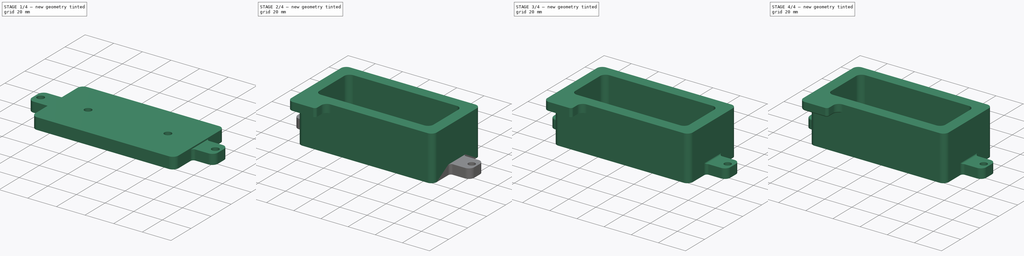
[diagram: build sequence overview — one tinted view per stage of 4, left to right]
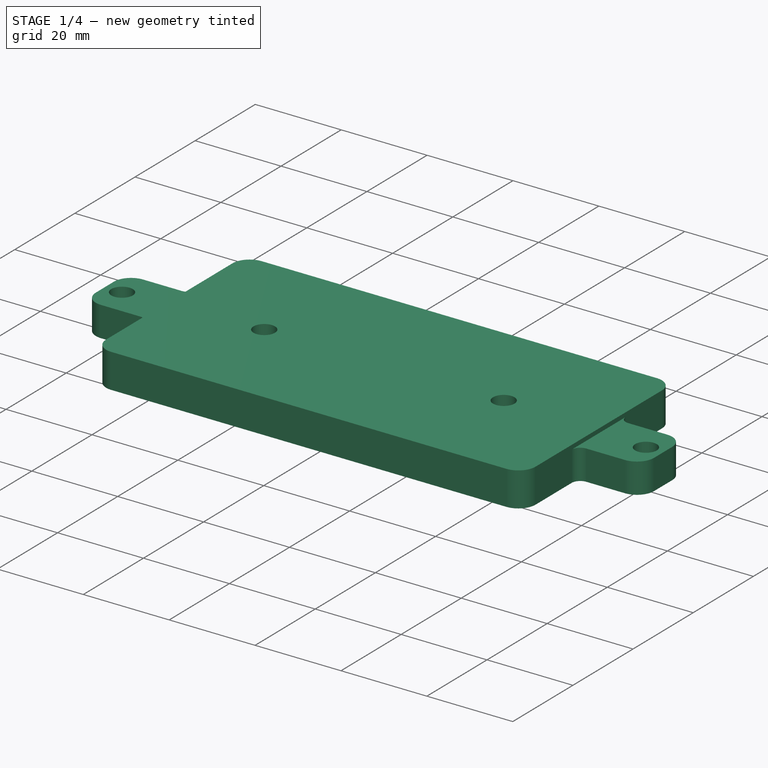
[diagram: stage 1 of 4 — iso view after this stage's code; geometry added in this stage tinted green]
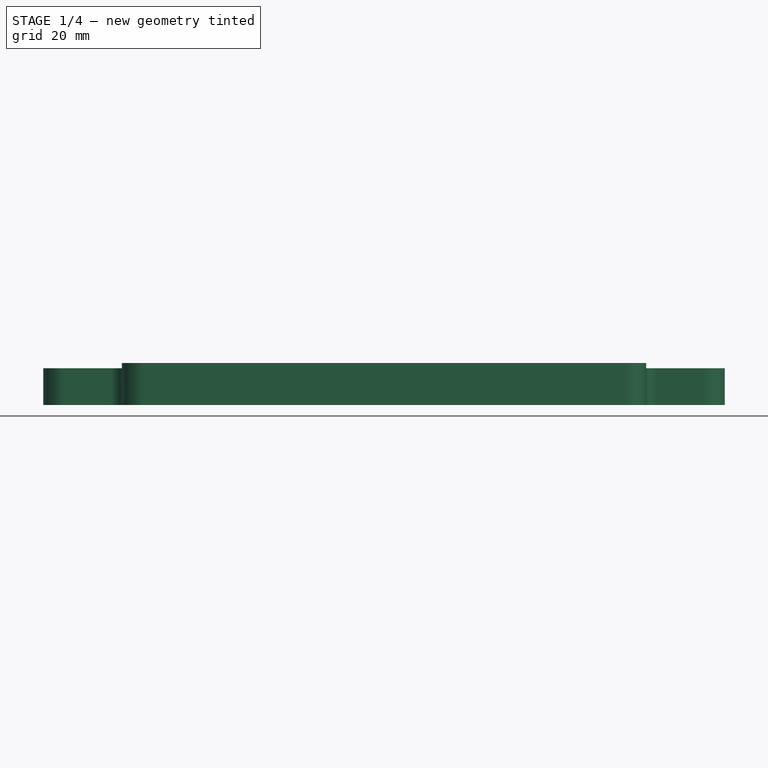
[diagram: stage 1 of 4 — front view after this stage's code; geometry added in this stage tinted green]
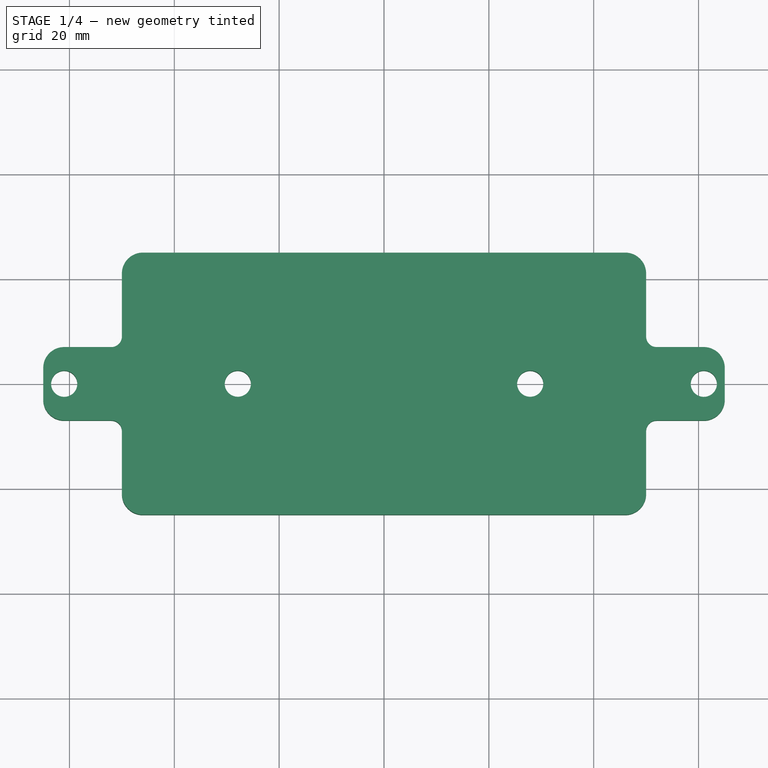
[diagram: stage 1 of 4 — top view after this stage's code; geometry added in this stage tinted green]
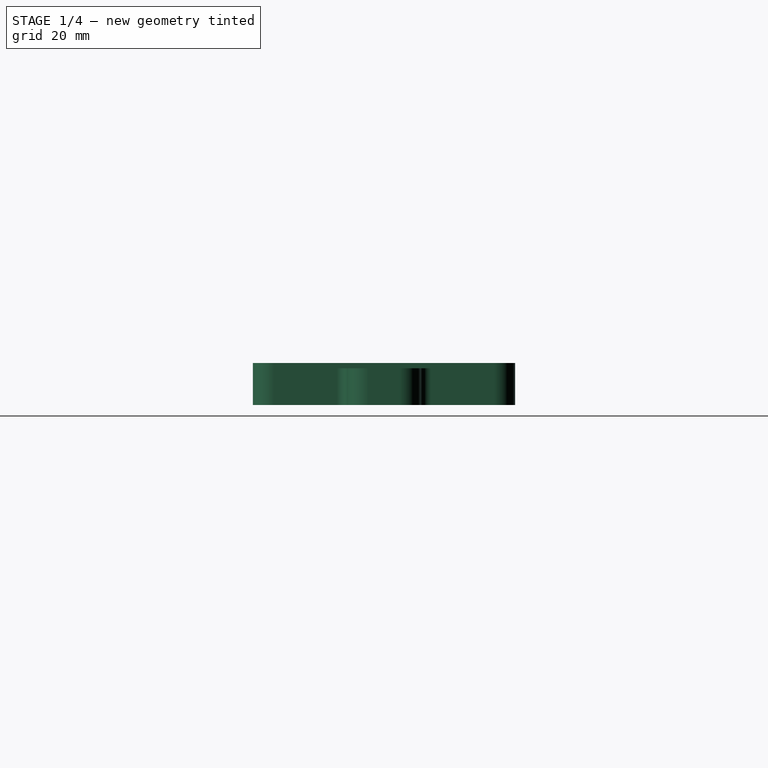
[diagram: stage 1 of 4 — right view after this stage's code; geometry added in this stage tinted green]
FCSTD DOCUMENT  (FreeCAD 1.0R39109 (Git))
Label: 7.3
License: All rights reserved
LicenseURL: https://en.wikipedia.org/wiki/All_rights_reserved
objects: Sketcher::SketchObject×5, PartDesign::Fillet×5, PartDesign::Pad×4, PartDesign::Body×1
note: 38 computed .brp shape members not serialized (recipe doc carries the construction recipe); baked Part::Feature solids carry a one-line shape summary decoded from their .brp

FEATURE [Sketcher::SketchObject] Sketch
  ArcFitTolerance = 1e-06
  AttachmentSupport = -> [XY_Plane]
  FullyConstrained = true
  MakeInternals = false
  MapMode = 5
  sketch-geometry (14):
    g0: LineSegment StartX=-50 StartY=21 StartZ=0 EndX=-50 EndY=-21 EndZ=0
    g1: LineSegment StartX=-46 StartY=-25 StartZ=0 EndX=46 EndY=-25 EndZ=0
    g2: LineSegment StartX=50 StartY=-21 StartZ=0 EndX=50 EndY=21 EndZ=0
    g3: LineSegment StartX=46 StartY=25 StartZ=0 EndX=-46 EndY=25 EndZ=0
    g4: Circle CenterX=-27.8843 CenterY=0 CenterZ=0 NormalX=0 NormalY=0 NormalZ=1 AngleXU=0 Radius=2.5
    g5: Circle CenterX=27.8843 CenterY=0 CenterZ=0 NormalX=0 NormalY=0 NormalZ=1 AngleXU=0 Radius=2.5
    g6: ArcOfCircle CenterX=-46 CenterY=-21 CenterZ=0 NormalX=0 NormalY=0 NormalZ=1 AngleXU=0 Radius=4 StartAngle=3.14159 EndAngle=4.71239
    g7: GeomPoint [constr] X=-50 Y=-25 Z=0
    g8: ArcOfCircle CenterX=-46 CenterY=21 CenterZ=0 NormalX=0 NormalY=0 NormalZ=1 AngleXU=0 Radius=4 StartAngle=1.5708 EndAngle=3.14159
    g9: GeomPoint [constr] X=-50 Y=25 Z=0
    g10: ArcOfCircle CenterX=46 CenterY=21 CenterZ=0 NormalX=0 NormalY=0 NormalZ=1 AngleXU=0 Radius=4 StartAngle=0 EndAngle=1.5708
    g11: GeomPoint [constr] X=50 Y=25 Z=0
    g12: ArcOfCircle CenterX=46 CenterY=-21 CenterZ=0 NormalX=0 NormalY=0 NormalZ=1 AngleXU=0 Radius=4 StartAngle=4.71239 EndAngle=6.28319
    g13: GeomPoint [constr] X=50 Y=-25 Z=0
  constraints (32):
    c: Vertical(g0)
    c: Vertical(g2)
    c: Horizontal(g1)
    c: Horizontal(g3)
    c: Symmetric(g9,g13,g-1)
    c: DistanceX(g9,g11) = 100
    c: DistanceY(g7,g9) = 50
    c: Diameter(g4) = 5
    c: Equal(g4,g5)
    c: PointOnObject(g4,g-1)
    c: Symmetric(g4,g5,g-1)
    c: PointOnObject(g7,g1)
    c: PointOnObject(g7,g0)
    c: Tangent(g1,g6) = -1.5708
    c: Tangent(g0,g6) = -1.5708
    c: PointOnObject(g9,g3)
    c: PointOnObject(g9,g0)
    c: Tangent(g3,g8) = -1.5708
    c: Tangent(g0,g8) = -1.5708
    c: PointOnObject(g11,g3)
    c: PointOnObject(g11,g2)
    c: Tangent(g3,g10) = -1.5708
    c: Tangent(g2,g10) = -1.5708
    c: PointOnObject(g13,g2)
    c: PointOnObject(g13,g1)
    c: Tangent(g2,g12) = -1.5708
    c: Tangent(g1,g12) = -1.5708
    c: Radius(g6) = 4
    c: Radius(g8) = 4
    c: Radius(g10) = 4
    c: Radius(g12) = 4
    c: Block(g4)
FEATURE [PartDesign::Pad] Pad
  Direction = (0,0,1)
  Length = 8
  Length2 = 10
  Profile = -> Sketch
  ReferenceAxis = -> Sketch [N_Axis]
  Refine = true
  Suppressed = false
  Type = 0
FEATURE [Sketcher::SketchObject] Sketch001
  ArcFitTolerance = 1e-06
  AttachmentSupport = -> [Pad]
  ExternalGeometry = -> [Pad]
  FullyConstrained = true
  MakeInternals = false
  MapMode = 5
  Placement = pos=(0,0,0) rot=(1,0,0;3.14159rad)
  sketch-geometry (30):
    g0: LineSegment StartX=-50 StartY=21 StartZ=0 EndX=-50 EndY=-21 EndZ=0
    g1: LineSegment StartX=-50 StartY=-21 StartZ=0 EndX=-50 EndY=-9 EndZ=0
    g2: LineSegment StartX=-52 StartY=-7 StartZ=0 EndX=-61 EndY=-7 EndZ=0
    g3: LineSegment StartX=-65 StartY=-3 StartZ=0 EndX=-65 EndY=3 EndZ=0
    g4: LineSegment StartX=-61 StartY=7 StartZ=0 EndX=-52 EndY=7 EndZ=0
    g5: LineSegment StartX=-50 StartY=9 StartZ=0 EndX=-50 EndY=21 EndZ=0
    g6: Circle CenterX=-61 CenterY=0 CenterZ=0 NormalX=0 NormalY=0 NormalZ=1 AngleXU=0 Radius=2.5
    g7: ArcOfCircle CenterX=-61 CenterY=3 CenterZ=0 NormalX=0 NormalY=0 NormalZ=1 AngleXU=0 Radius=4 StartAngle=1.5708 EndAngle=3.14159
    g8: GeomPoint [constr] X=-65 Y=7 Z=0
    g9: ArcOfCircle CenterX=-61 CenterY=-3 CenterZ=0 NormalX=0 NormalY=0 NormalZ=1 AngleXU=0 Radius=4 StartAngle=3.14159 EndAngle=4.71239
    g10: GeomPoint [constr] X=-65 Y=-7 Z=0
    g11: ArcOfCircle CenterX=-52 CenterY=9 CenterZ=0 NormalX=0 NormalY=0 NormalZ=1 AngleXU=0 Radius=2 StartAngle=4.71239 EndAngle=6.28319
    g12: GeomPoint [constr] X=-50 Y=7 Z=0
    g13: ArcOfCircle CenterX=-52 CenterY=-9 CenterZ=0 NormalX=0 NormalY=0 NormalZ=1 AngleXU=0 Radius=2 StartAngle=6e-16 EndAngle=1.5708
    g14: GeomPoint [constr] X=-50 Y=-7 Z=0
    g15: LineSegment StartX=50 StartY=21 StartZ=0 EndX=50 EndY=-21 EndZ=0
    g16: LineSegment StartX=50 StartY=-21 StartZ=0 EndX=50 EndY=-9 EndZ=0
    g17: LineSegment StartX=52 StartY=-7 StartZ=0 EndX=61 EndY=-7 EndZ=0
    g18: LineSegment StartX=65 StartY=-3 StartZ=0 EndX=65 EndY=3 EndZ=0
    g19: LineSegment StartX=61 StartY=7 StartZ=0 EndX=52 EndY=7 EndZ=0
    g20: LineSegment StartX=50 StartY=9 StartZ=0 EndX=50 EndY=21 EndZ=0
    g21: Circle CenterX=61 CenterY=0 CenterZ=0 NormalX=0 NormalY=0 NormalZ=1 AngleXU=0 Radius=2.5
    g22: ArcOfCircle CenterX=61 CenterY=3 CenterZ=0 NormalX=0 NormalY=0 NormalZ=1 AngleXU=0 Radius=4 StartAngle=1e-16 EndAngle=1.5708
    g23: GeomPoint [constr] X=65 Y=7 Z=0
    g24: ArcOfCircle CenterX=61 CenterY=-3 CenterZ=0 NormalX=0 NormalY=0 NormalZ=1 AngleXU=0 Radius=4 StartAngle=4.71239 EndAngle=6.28319
    g25: GeomPoint [constr] X=65 Y=-7 Z=0
    g26: ArcOfCircle CenterX=52 CenterY=9 CenterZ=0 NormalX=0 NormalY=0 NormalZ=1 AngleXU=0 Radius=2 StartAngle=3.14159 EndAngle=4.71239
    g27: GeomPoint [constr] X=50 Y=7 Z=0
    g28: ArcOfCircle CenterX=52 CenterY=-9 CenterZ=0 NormalX=0 NormalY=0 NormalZ=1 AngleXU=0 Radius=2 StartAngle=1.5708 EndAngle=3.14159
    g29: GeomPoint [constr] X=50 Y=-7 Z=0
  constraints (64):
    c: Coincident(g-3,g0)
    c: Coincident(g0,g-3)
    c: Coincident(g0,g1)
    c: Horizontal(g2)
    c: Coincident(g5,g0)
    c: Vertical(g12,g14)
    c: Symmetric(g10,g8,g-1)
    c: Parallel(g2,g4)
    c: DistanceY(g10,g8) = 14
    c: DistanceX(g12,g-1) = 50
    c: DistanceX(g10,g-1) = 65
    c: Diameter(g6) = 5
    c: PointOnObject(g6,g-1)
    c: PointOnObject(g8,g4)
    c: PointOnObject(g8,g3)
    c: Tangent(g4,g7) = 1.5708
    c: Tangent(g3,g7) = 1.5708
    c: PointOnObject(g10,g3)
    c: PointOnObject(g10,g2)
    c: Tangent(g3,g9) = 1.5708
    c: Tangent(g2,g9) = 1.5708
    c: PointOnObject(g12,g4)
    c: PointOnObject(g12,g5)
    c: Tangent(g4,g11) = -1.5708
    c: Tangent(g5,g11) = -1.5708
    c: PointOnObject(g14,g2)
    c: PointOnObject(g14,g1)
    c: Tangent(g2,g13) = -1.5708
    c: Tangent(g1,g13) = -1.5708
    c: Radius(g13) = 2
    c: Radius(g11) = 2
    c: Radius(g7) = 4
    c: Radius(g9) = 4
    c: Vertical(g6,g9)
    c: Coincident(g15,g16)
    c: Horizontal(g17)
    c: Coincident(g20,g15)
    c: Parallel(g17,g19)
    c: Diameter(g21) = 5
    c: PointOnObject(g23,g19)
    c: PointOnObject(g23,g18)
    c: Tangent(g19,g22) = -1.5708
    c: Tangent(g18,g22) = -1.5708
    c: PointOnObject(g25,g18)
    c: PointOnObject(g25,g17)
    c: Tangent(g18,g24) = -1.5708
    c: Tangent(g17,g24) = -1.5708
    c: PointOnObject(g27,g19)
    c: PointOnObject(g27,g20)
    c: Tangent(g19,g26) = 1.5708
    c: Tangent(g20,g26) = 1.5708
    c: PointOnObject(g29,g17)
    c: PointOnObject(g29,g16)
    c: Tangent(g17,g28) = 1.5708
    c: Tangent(g16,g28) = 1.5708
    c: Radius(g28) = 2
    c: Radius(g26) = 2
    c: Radius(g22) = 4
    c: Radius(g24) = 4
    c: Block(g15)
    c: Block(g18)
    c: Block(g21)
    c: Block(g19)
    c: Block(g17)
FEATURE [PartDesign::Pad] Pad001
  BaseFeature = -> Pad
  Direction = (0,0,-1)
  Length = 7
  Length2 = 10
  Profile = -> Sketch001
  ReferenceAxis = -> Sketch001 [N_Axis]
  Refine = true
  Reversed = true
  Suppressed = false
  Type = 0
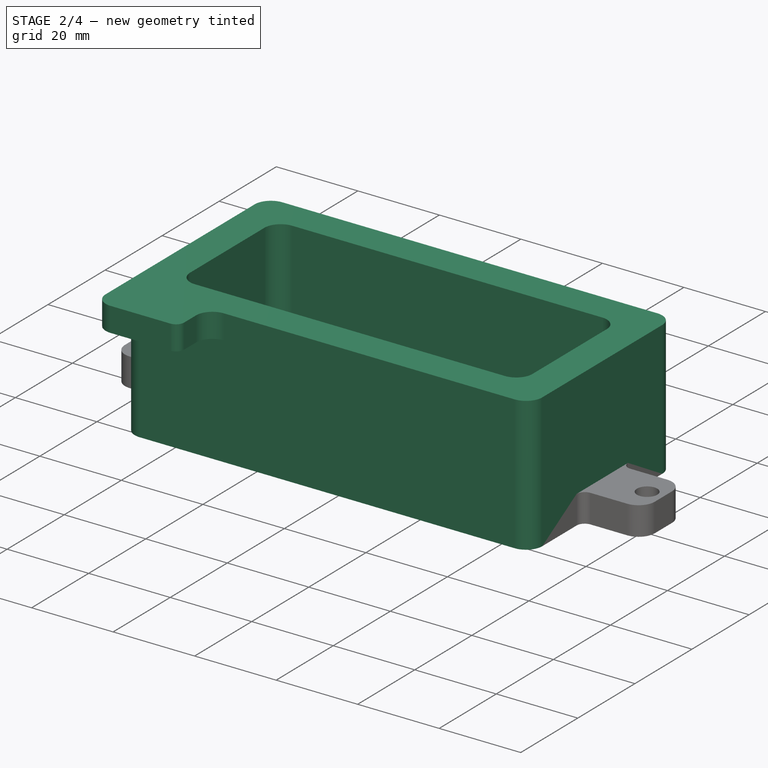
[diagram: stage 2 of 4 — iso view after this stage's code; geometry added in this stage tinted green]
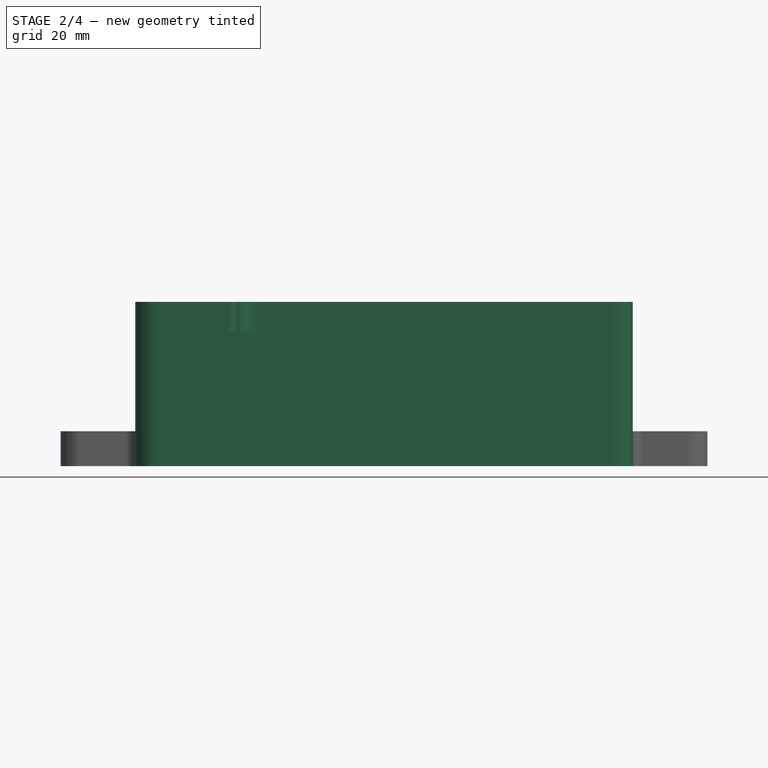
[diagram: stage 2 of 4 — front view after this stage's code; geometry added in this stage tinted green]
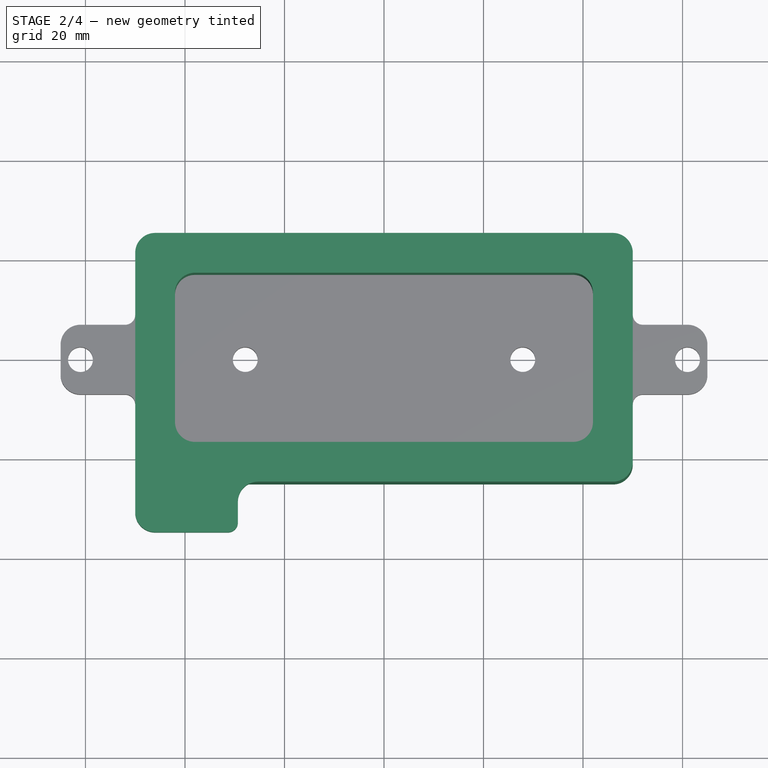
[diagram: stage 2 of 4 — top view after this stage's code; geometry added in this stage tinted green]
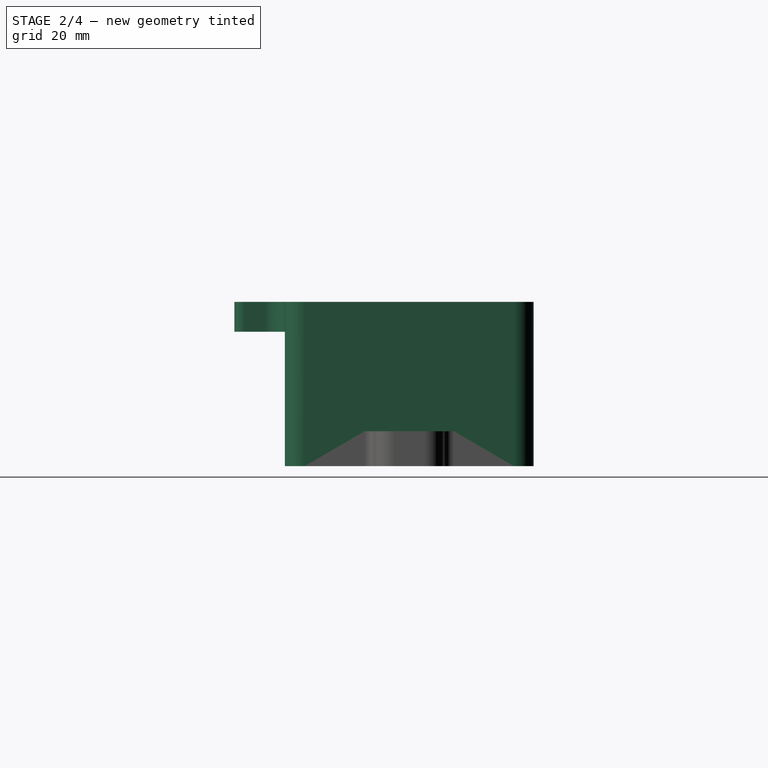
[diagram: stage 2 of 4 — right view after this stage's code; geometry added in this stage tinted green]
FEATURE [Sketcher::SketchObject] Sketch002
  ArcFitTolerance = 1e-06
  AttachmentSupport = -> [Pad001]
  FullyConstrained = true
  MakeInternals = false
  MapMode = 5
  Placement = pos=(0,0,8) rot=(0,0,1;0rad)
FEATURE [Sketcher::SketchObject] Sketch003
  ArcFitTolerance = 1e-06
  AttachmentSupport = -> [Pad001]
  ExternalGeometry = -> [Pad001]
  FullyConstrained = true
  MakeInternals = false
  MapMode = 5
  Placement = pos=(0,0,8) rot=(0,0,1;0rad)
  sketch-geometry (24):
    g0: LineSegment StartX=-46 StartY=25 StartZ=0 EndX=46 EndY=25 EndZ=0
    g1: LineSegment StartX=50 StartY=21 StartZ=0 EndX=50 EndY=-21 EndZ=0
    g2: LineSegment StartX=46 StartY=-25 StartZ=0 EndX=-46 EndY=-25 EndZ=0
    g3: LineSegment StartX=-50 StartY=-21 StartZ=0 EndX=-50 EndY=21 EndZ=0
    g4: ArcOfCircle CenterX=-46 CenterY=21 CenterZ=0 NormalX=0 NormalY=0 NormalZ=1 AngleXU=0 Radius=4 StartAngle=1.5708 EndAngle=3.14159
    g5: GeomPoint [constr] X=-50 Y=25 Z=0
    g6: ArcOfCircle CenterX=46 CenterY=-21 CenterZ=0 NormalX=0 NormalY=0 NormalZ=1 AngleXU=0 Radius=4 StartAngle=4.71239 EndAngle=6.28319
    g7: GeomPoint [constr] X=50 Y=-25 Z=0
    g8: ArcOfCircle CenterX=-46 CenterY=-21 CenterZ=0 NormalX=0 NormalY=0 NormalZ=1 AngleXU=0 Radius=4 StartAngle=3.14159 EndAngle=4.71239
    g9: GeomPoint [constr] X=-50 Y=-25 Z=0
    g10: ArcOfCircle CenterX=46 CenterY=21 CenterZ=0 NormalX=0 NormalY=0 NormalZ=1 AngleXU=0 Radius=4 StartAngle=-9e-16 EndAngle=1.5708
    g11: GeomPoint [constr] X=50 Y=25 Z=0
    g12: LineSegment StartX=-42 StartY=13 StartZ=0 EndX=-42 EndY=-13 EndZ=0
    g13: LineSegment StartX=-38 StartY=-17 StartZ=0 EndX=38 EndY=-17 EndZ=0
    g14: LineSegment StartX=42 StartY=-13 StartZ=0 EndX=42 EndY=13 EndZ=0
    g15: LineSegment StartX=38 StartY=17 StartZ=0 EndX=-38 EndY=17 EndZ=0
    g16: ArcOfCircle CenterX=-38 CenterY=13 CenterZ=0 NormalX=0 NormalY=0 NormalZ=1 AngleXU=0 Radius=4 StartAngle=1.5708 EndAngle=3.14159
    g17: GeomPoint [constr] X=-42 Y=17 Z=0
    g18: ArcOfCircle CenterX=-38 CenterY=-13 CenterZ=0 NormalX=0 NormalY=0 NormalZ=1 AngleXU=0 Radius=4 StartAngle=3.14159 EndAngle=4.71239
    g19: GeomPoint [constr] X=-42 Y=-17 Z=0
    g20: ArcOfCircle CenterX=38 CenterY=-13 CenterZ=0 NormalX=0 NormalY=0 NormalZ=1 AngleXU=0 Radius=4 StartAngle=4.71239 EndAngle=6.28319
    g21: GeomPoint [constr] X=42 Y=-17 Z=0
    g22: ArcOfCircle CenterX=38 CenterY=13 CenterZ=0 NormalX=0 NormalY=0 NormalZ=1 AngleXU=0 Radius=4 StartAngle=0 EndAngle=1.5708
    g23: GeomPoint [constr] X=42 Y=17 Z=0
  constraints (53):
    c: Horizontal(g0)
    c: Vertical(g1)
    c: Horizontal(g2)
    c: Vertical(g3)
    c: PointOnObject(g5,g0)
    c: PointOnObject(g5,g3)
    c: Tangent(g0,g4) = 1.5708
    c: Tangent(g3,g4) = 1.5708
    c: Radius(g4) = 4
    c: Coincident(g0,g-8)
    c: PointOnObject(g7,g1)
    c: PointOnObject(g7,g2)
    c: Tangent(g1,g6) = 1.5708
    c: Tangent(g2,g6) = 1.5708
    c: Radius(g6) = 4
    c: Coincident(g2,g-10)
    c: PointOnObject(g9,g3)
    c: PointOnObject(g9,g2)
    c: Tangent(g3,g8) = 1.5708
    c: Tangent(g2,g8) = 1.5708
    c: PointOnObject(g11,g0)
    c: PointOnObject(g11,g1)
    c: Tangent(g0,g10) = 1.5708
    c: Tangent(g1,g10) = 1.5708
    c: Radius(g10) = 4
    c: Radius(g8) = 4
    c: Vertical(g12)
    c: Vertical(g14)
    c: Horizontal(g13)
    c: Horizontal(g15)
    c: Symmetric(g17,g21,g-1)
    c: Distance(g23,g0) = 8
    c: Distance(g21,g1) = 8
    c: PointOnObject(g17,g15)
    c: PointOnObject(g17,g12)
    c: Tangent(g15,g16) = -1.5708
    c: Tangent(g12,g16) = -1.5708
    c: PointOnObject(g19,g12)
    c: PointOnObject(g19,g13)
    c: Tangent(g12,g18) = -1.5708
    c: Tangent(g13,g18) = -1.5708
    c: PointOnObject(g21,g13)
    c: PointOnObject(g21,g14)
    c: Tangent(g13,g20) = -1.5708
    c: Tangent(g14,g20) = -1.5708
    c: PointOnObject(g23,g14)
    c: PointOnObject(g23,g15)
    c: Tangent(g14,g22) = -1.5708
    c: Tangent(g15,g22) = -1.5708
    c: Radius(g16) = 4
    c: Radius(g18) = 4
    c: Radius(g20) = 4
    c: Radius(g22) = 4
FEATURE [PartDesign::Pad] Pad002
  BaseFeature = -> Pad001
  Direction = (0,0,1)
  Length = 25
  Length2 = 10
  Profile = -> Sketch003
  ReferenceAxis = -> Sketch003 [N_Axis]
  Refine = true
  Suppressed = false
  Type = 0
FEATURE [Sketcher::SketchObject] Sketch004
  ArcFitTolerance = 1e-06
  AttachmentSupport = -> [Pad002]
  ExternalGeometry = -> [Pad002]
  FullyConstrained = true
  MakeInternals = false
  MapMode = 5
  Placement = pos=(0,0,33) rot=(0,0,1;0rad)
  sketch-geometry (12):
    g0: LineSegment StartX=-50 StartY=-21 StartZ=0 EndX=-50 EndY=-31.1566 EndZ=0
    g1: LineSegment StartX=-46 StartY=-35.1566 StartZ=0 EndX=-31.3634 EndY=-35.1566 EndZ=0
    g2: LineSegment StartX=-29.3634 StartY=-33.1566 StartZ=0 EndX=-29.3634 EndY=-29 EndZ=0
    g3: LineSegment StartX=-25.3634 StartY=-25 StartZ=0 EndX=-20.3245 EndY=-25 EndZ=0
    g4: LineSegment StartX=-20.3245 StartY=-25 StartZ=0 EndX=-20.3245 EndY=-21 EndZ=0
    g5: LineSegment StartX=-20.3245 StartY=-21 StartZ=0 EndX=-50 EndY=-21 EndZ=0
    g6: ArcOfCircle CenterX=-46 CenterY=-31.1566 CenterZ=0 NormalX=0 NormalY=0 NormalZ=1 AngleXU=0 Radius=4 StartAngle=3.14159 EndAngle=4.71239
    g7: GeomPoint [constr] X=-50 Y=-35.1566 Z=0
    g8: ArcOfCircle CenterX=-31.3634 CenterY=-33.1566 CenterZ=0 NormalX=0 NormalY=0 NormalZ=1 AngleXU=0 Radius=2 StartAngle=4.71239 EndAngle=6.28319
    g9: GeomPoint [constr] X=-29.3634 Y=-35.1566 Z=0
    g10: ArcOfCircle CenterX=-25.3634 CenterY=-29 CenterZ=0 NormalX=0 NormalY=0 NormalZ=1 AngleXU=0 Radius=4 StartAngle=1.5708 EndAngle=3.14159
    g11: GeomPoint [constr] X=-29.3634 Y=-25 Z=0
  constraints (29):
    c: Coincident(g-5,g0)
    c: Horizontal(g3)
    c: Coincident(g3,g4)
    c: Coincident(g4,g5)
    c: Coincident(g5,g0)
    c: Horizontal(g5)
    c: Horizontal(g7,g9)
    c: Vertical(g0,g7)
    c: Vertical(g11,g9)
    c: PointOnObject(g11,g-4)
    c: PointOnObject(g7,g1)
    c: PointOnObject(g7,g0)
    c: Tangent(g1,g6) = -1.5708
    c: Tangent(g0,g6) = -1.5708
    c: PointOnObject(g9,g1)
    c: PointOnObject(g9,g2)
    c: Tangent(g1,g8) = -1.5708
    c: Tangent(g2,g8) = -1.5708
    c: PointOnObject(g11,g2)
    c: PointOnObject(g11,g3)
    c: Tangent(g2,g10) = 1.5708
    c: Tangent(g3,g10) = 1.5708
    c: Radius(g6) = 4
    c: Radius(g10) = 4
    c: Radius(g8) = 2
    c: Vertical(g3,g4)
    c: Block(g1)
    c: Block(g0)
    c: Block(g4)
FEATURE [PartDesign::Pad] Pad003
  BaseFeature = -> Pad002
  Direction = (0,0,1)
  Length = 6
  Length2 = 10
  Profile = -> Sketch004
  ReferenceAxis = -> Sketch004 [N_Axis]
  Refine = true
  Reversed = true
  Suppressed = false
  Type = 0
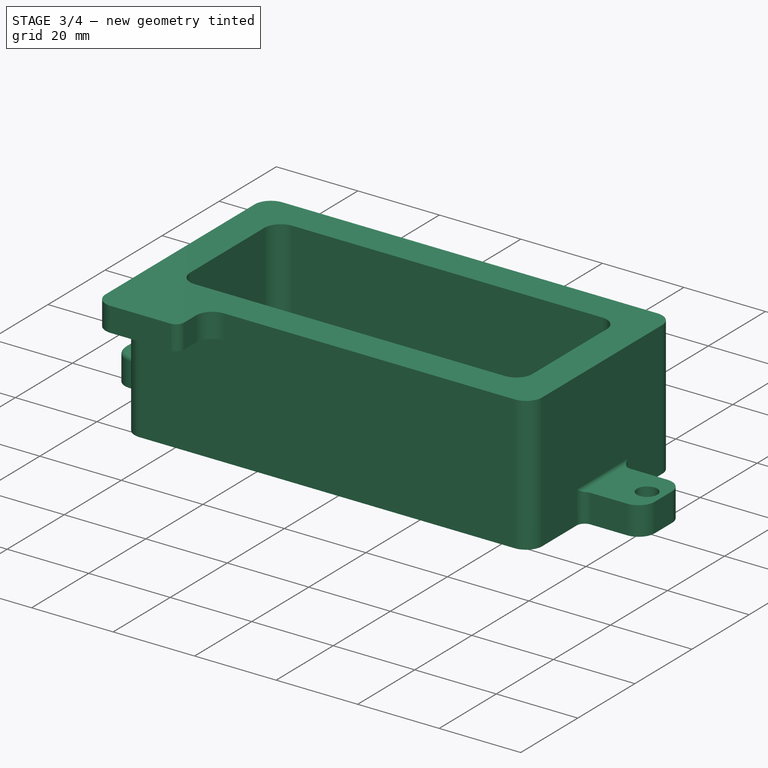
[diagram: stage 3 of 4 — iso view after this stage's code; geometry added in this stage tinted green]
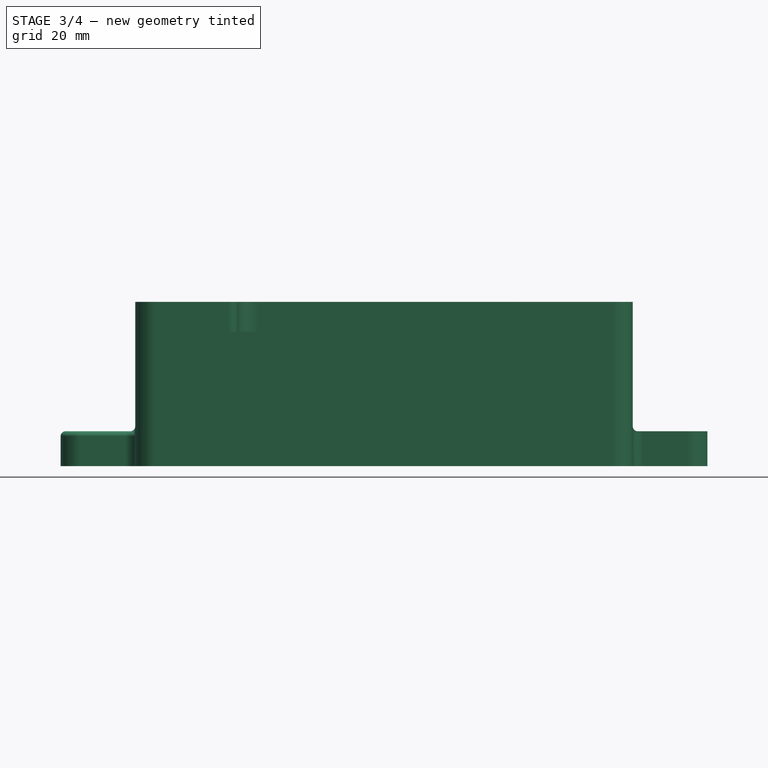
[diagram: stage 3 of 4 — front view after this stage's code; geometry added in this stage tinted green]
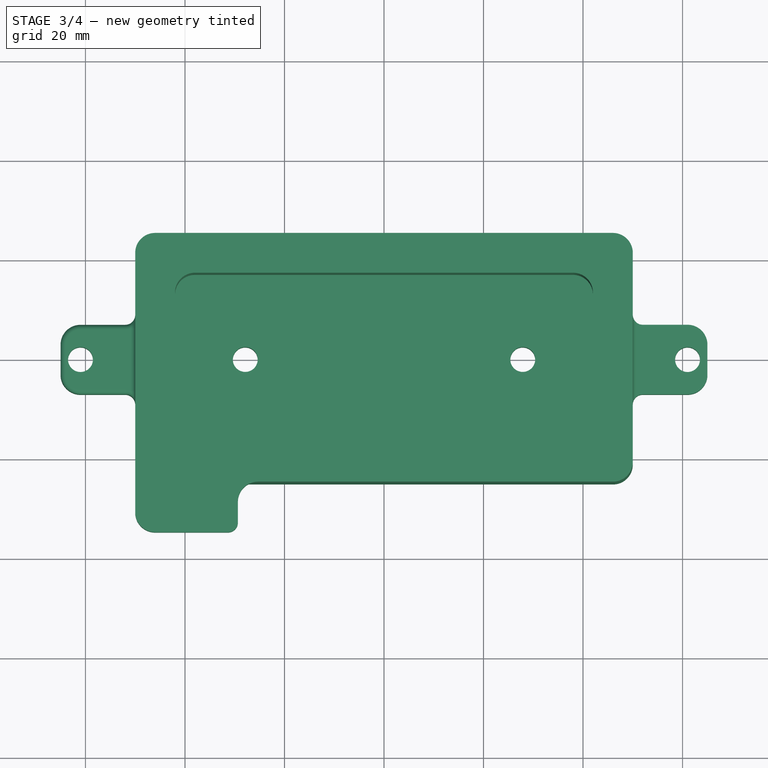
[diagram: stage 3 of 4 — top view after this stage's code; geometry added in this stage tinted green]
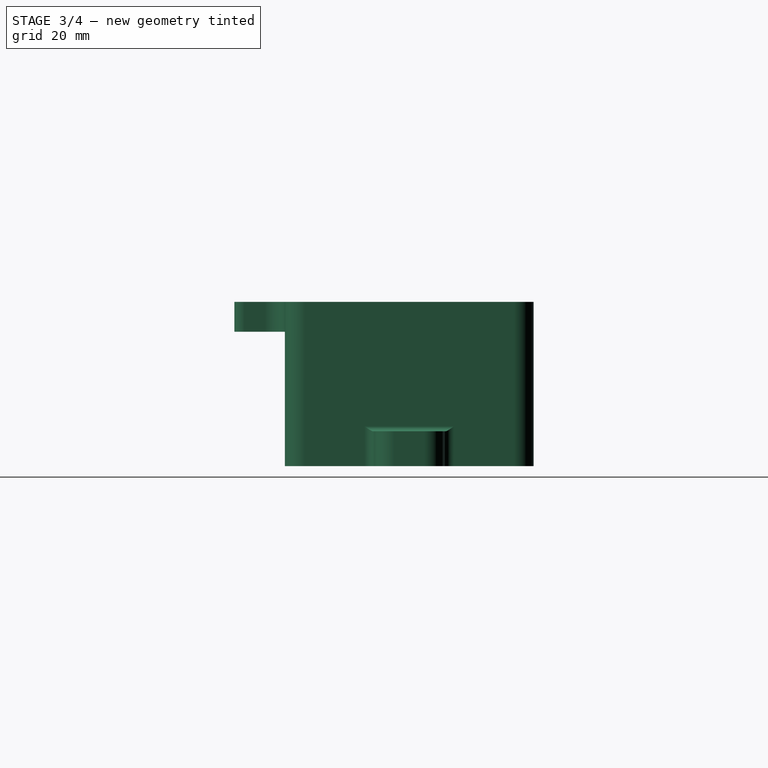
[diagram: stage 3 of 4 — right view after this stage's code; geometry added in this stage tinted green]
FEATURE [PartDesign::Fillet] Fillet
  Base = -> Pad003 [Edge67]
  BaseFeature = -> Pad003
  Radius = 1
  Refine = true
  SupportTransform = false
  Suppressed = false
  UseAllEdges = false
FEATURE [PartDesign::Fillet] Fillet001
  Base = -> Fillet [Edge41]
  BaseFeature = -> Fillet
  Radius = 1
  Refine = true
  SupportTransform = false
  Suppressed = false
  UseAllEdges = false
FEATURE [PartDesign::Fillet] Fillet002
  Base = -> Fillet001 [Edge114]
  BaseFeature = -> Fillet001
  Radius = 1
  Refine = true
  SupportTransform = false
  Suppressed = false
  UseAllEdges = false
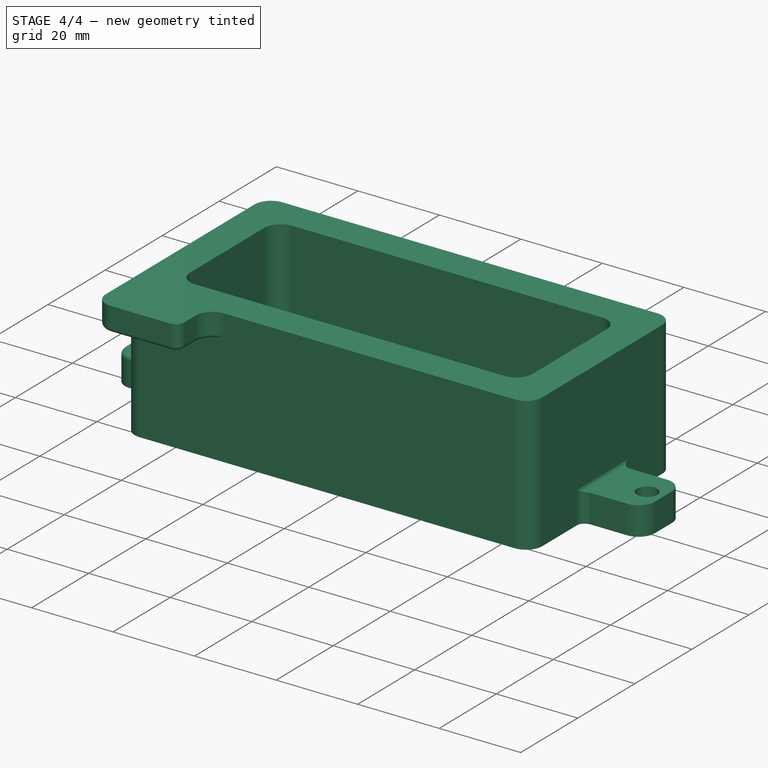
[diagram: stage 4 of 4 — iso view after this stage's code; geometry added in this stage tinted green]
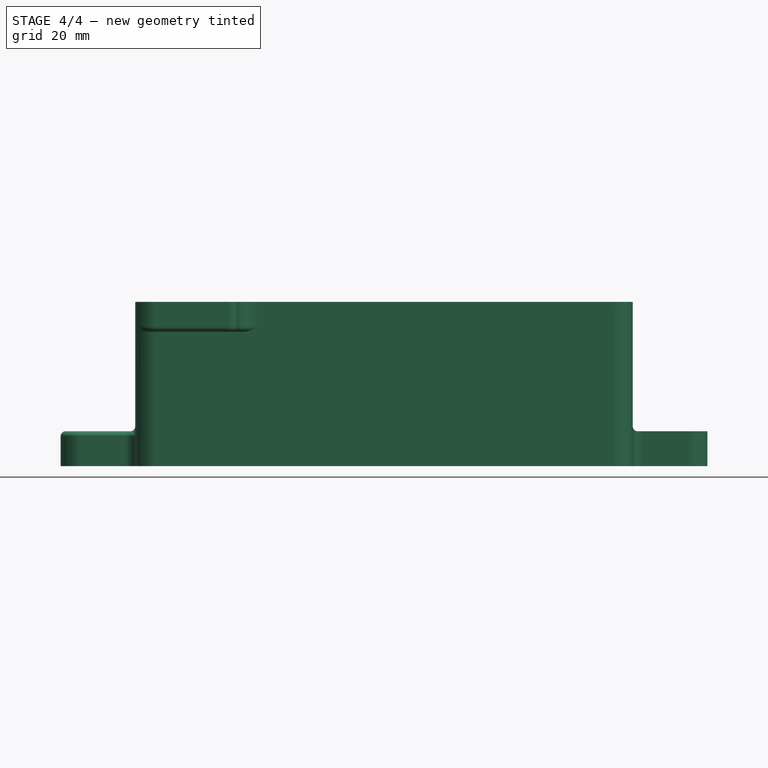
[diagram: stage 4 of 4 — front view after this stage's code; geometry added in this stage tinted green]
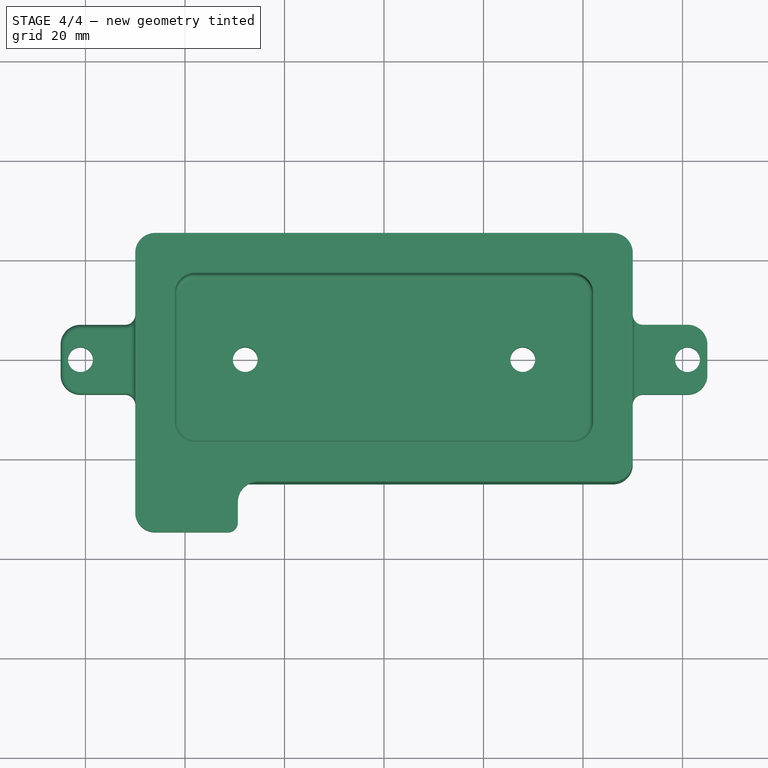
[diagram: stage 4 of 4 — top view after this stage's code; geometry added in this stage tinted green]
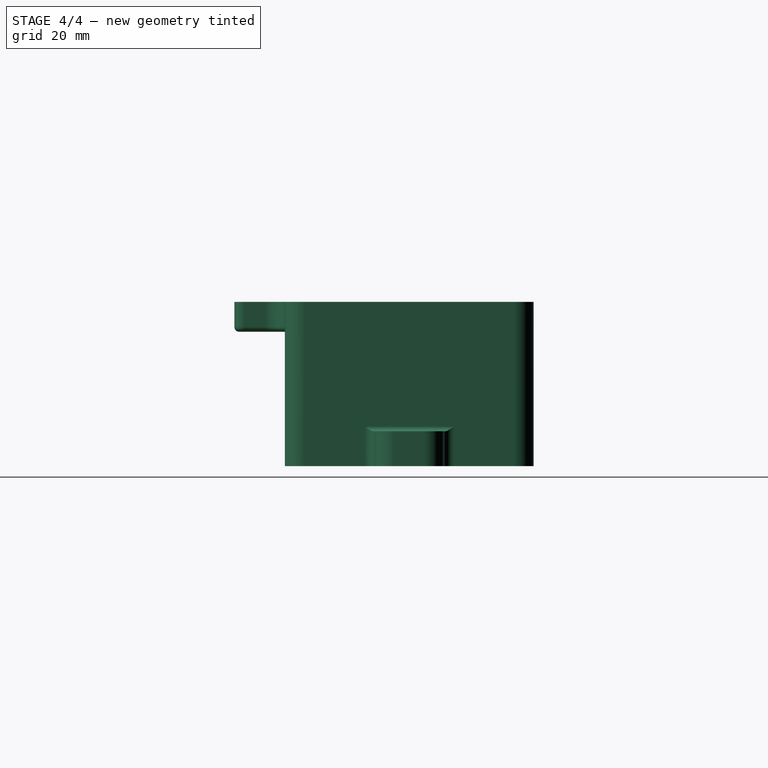
[diagram: stage 4 of 4 — right view after this stage's code; geometry added in this stage tinted green]
FEATURE [PartDesign::Fillet] Fillet003
  Base = -> Fillet002 [Edge128]
  BaseFeature = -> Fillet002
  Radius = 1
  Refine = true
  SupportTransform = false
  Suppressed = false
  UseAllEdges = false
FEATURE [PartDesign::Body] Body  label="Тело"
  AllowCompound = false
  Group = -> [Sketch,Pad,Sketch001,Pad001,Sketch002,Sketch003,Pad002,Sketch004,Pad003,Fillet,Fillet001,Fillet002,Fillet003]
  Origin = -> Origin
  Tip = -> Fillet003
FEATURE [PartDesign::Fillet] Fillet004
  Base = -> Fillet003 [Edge66]
  BaseFeature = -> Fillet003
  Radius = 1
  Refine = true
  SupportTransform = false
  Suppressed = false
  UseAllEdges = false
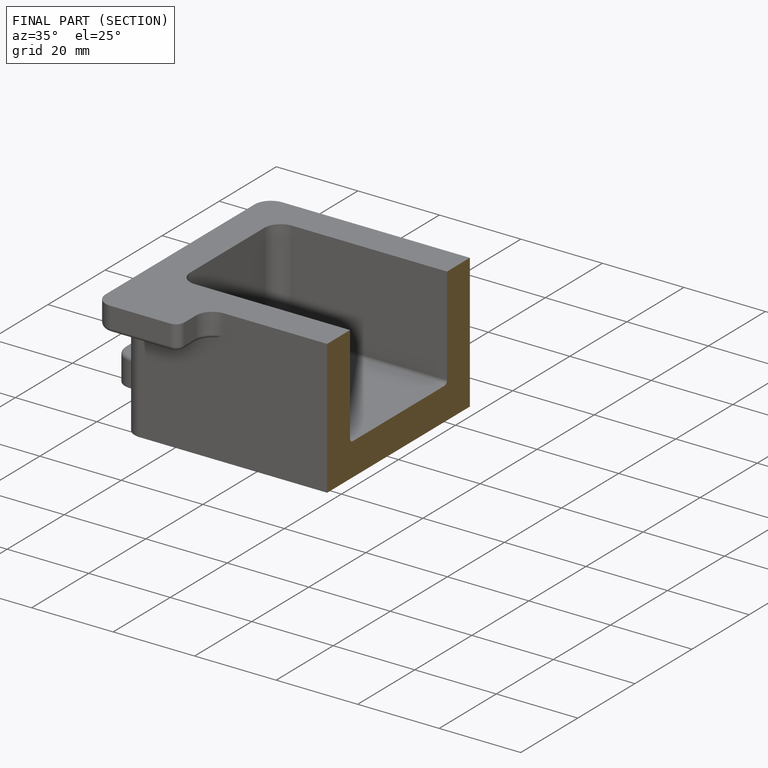
[diagram: finished part — half-section view (interior)]
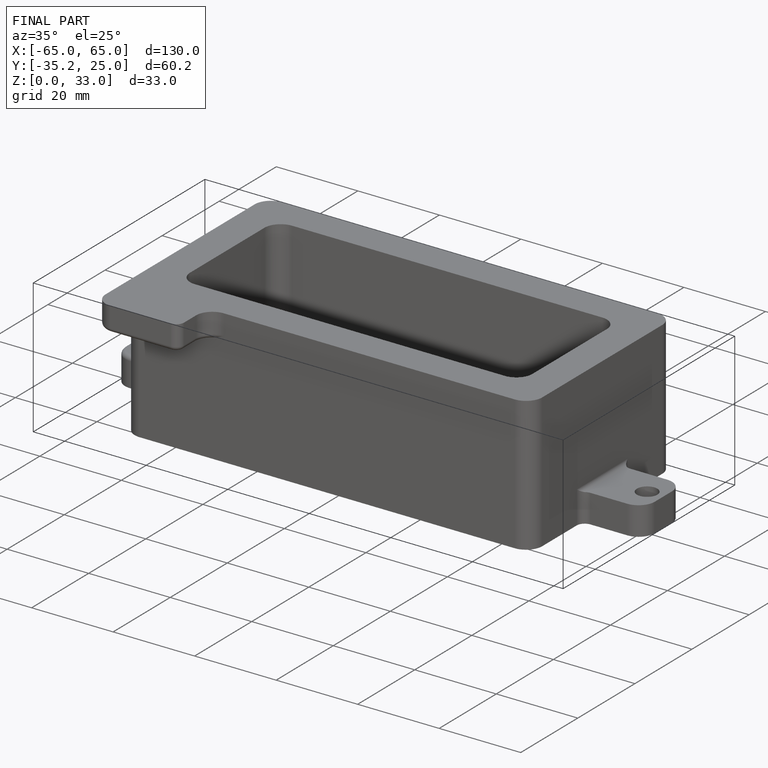
[diagram: finished part — iso view with bounding-box wireframe]
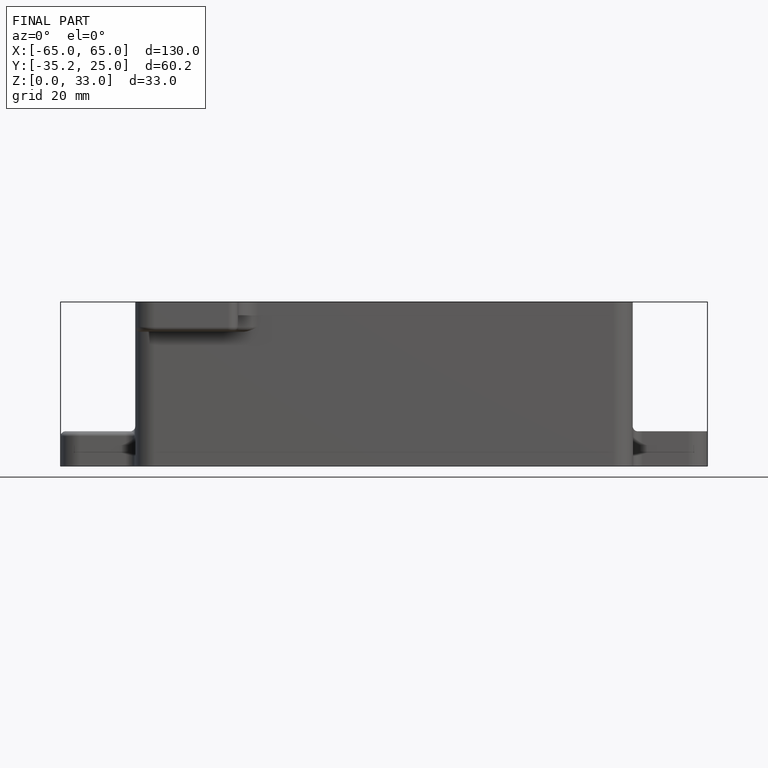
[diagram: finished part — front view with bounding-box wireframe]
